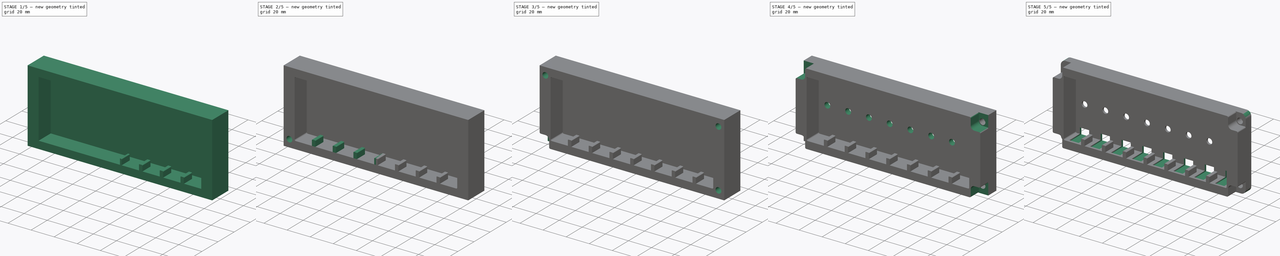
[diagram: build sequence overview — one tinted view per stage of 5, left to right]
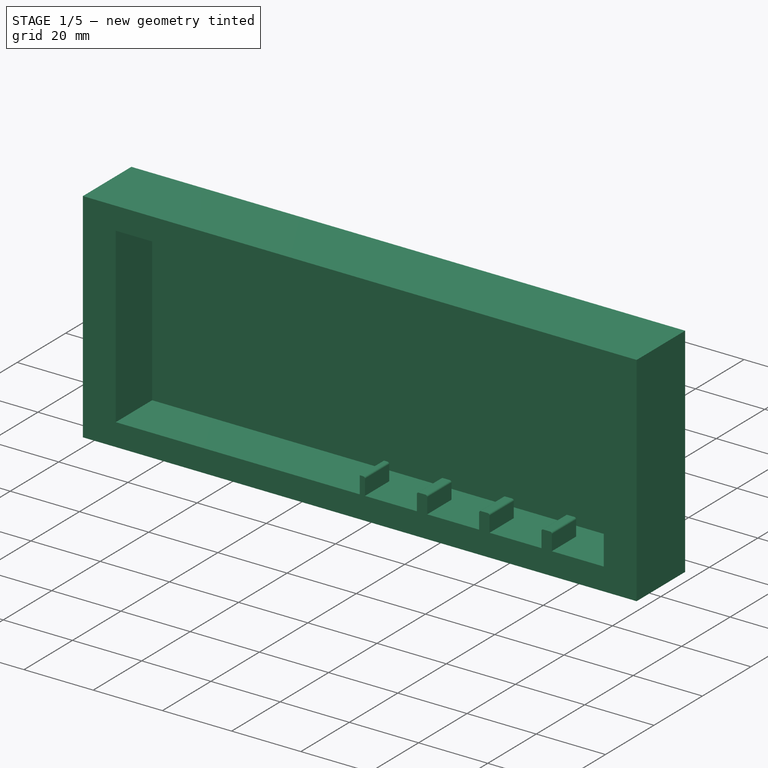
[diagram: stage 1 of 5 — iso view after this stage's code; geometry added in this stage tinted green]
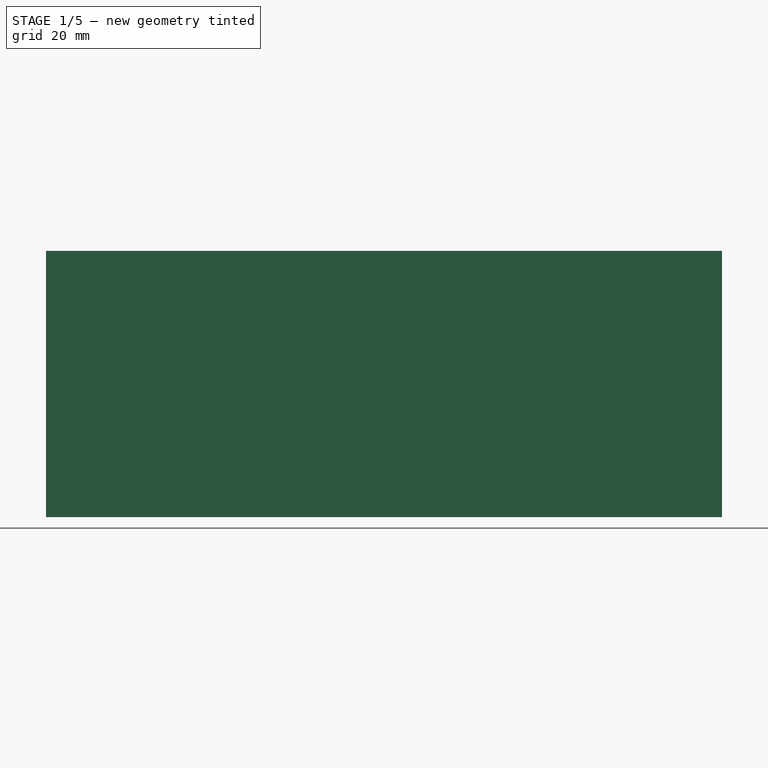
[diagram: stage 1 of 5 — front view after this stage's code; geometry added in this stage tinted green]
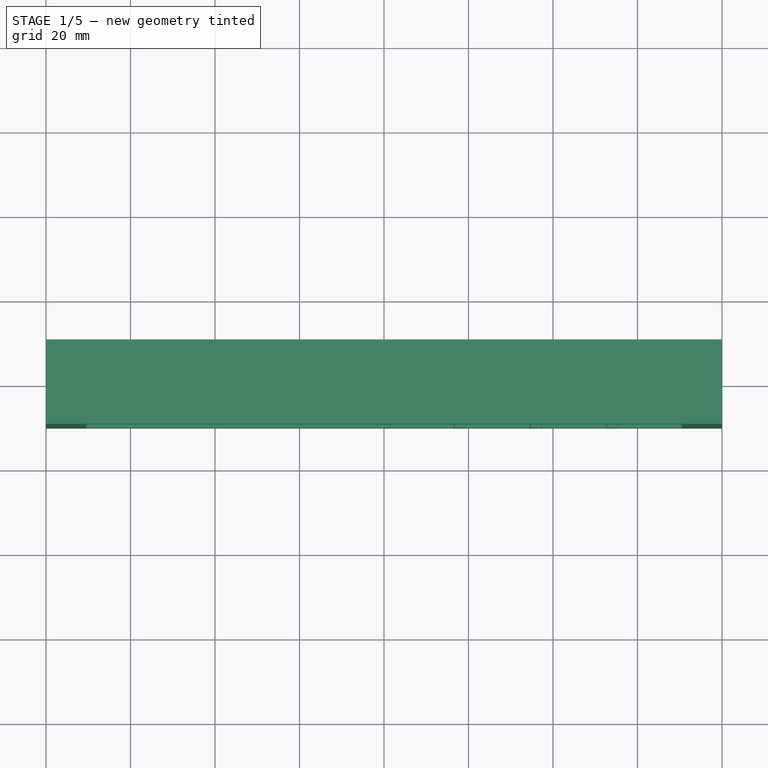
[diagram: stage 1 of 5 — top view after this stage's code; geometry added in this stage tinted green]
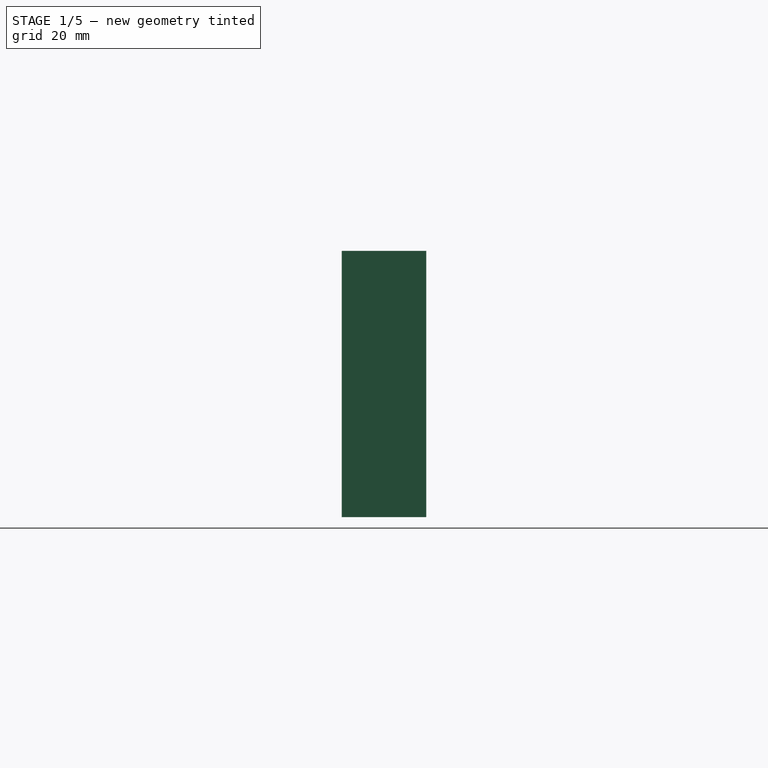
[diagram: stage 1 of 5 — right view after this stage's code; geometry added in this stage tinted green]
FCSTD DOCUMENT  (FreeCAD 0.20R29410 (Git))
Label: Battery_holder
License: All rights reserved
LicenseURL: http://en.wikipedia.org/wiki/All_rights_reserved
objects: Sketcher::SketchObject×9, PartDesign::Pocket×7, PartDesign::Mirrored×7, PartDesign::Fillet×4, PartDesign::MultiTransform×3, PartDesign::Pad×2, PartDesign::Plane×2, PartDesign::LinearPattern×1, PartDesign::Body×1
note: 49 computed .brp shape members not serialized (recipe doc carries the construction recipe); baked Part::Feature solids carry a one-line shape summary decoded from their .brp

FEATURE [Sketcher::SketchObject] Sketch
  FullyConstrained = true
  MapMode = 5
  Support = -> [XY_Plane]
  sketch-geometry (4):
    g0: LineSegment StartX=-80 StartY=10 StartZ=0 EndX=80 EndY=10 EndZ=0
    g1: LineSegment StartX=80 StartY=10 StartZ=0 EndX=80 EndY=-10 EndZ=0
    g2: LineSegment StartX=80 StartY=-10 StartZ=0 EndX=-80 EndY=-10 EndZ=0
    g3: LineSegment StartX=-80 StartY=-10 StartZ=0 EndX=-80 EndY=10 EndZ=0
  constraints (11):
    c: Coincident(g0,g1)
    c: Coincident(g1,g2)
    c: Coincident(g2,g3)
    c: Coincident(g3,g0)
    c: Horizontal(g0)
    c: Horizontal(g2)
    c: Vertical(g1)
    c: Vertical(g3)
    c: Symmetric(g0,g1,g-1)
    c: DistanceY(g1,g1) = 20
    c: DistanceX(g0,g0) = 160
FEATURE [PartDesign::Pad] Pad
  Direction = (0,0,1)
  Length = 63
  Length2 = 10
  Midplane = true
  Profile = -> Sketch
  ReferenceAxis = -> Sketch [N_Axis]
  Type = 0
FEATURE [Sketcher::SketchObject] Sketch001
  ExternalGeometry = -> [Pad]
  FullyConstrained = true
  MapMode = 5
  Support = -> [XY_Plane]
  sketch-geometry (4):
    g0: LineSegment StartX=-70.5 StartY=-10 StartZ=0 EndX=70.5 EndY=-10 EndZ=0
    g1: LineSegment StartX=70.5 StartY=-10 StartZ=0 EndX=70.5 EndY=5 EndZ=0
    g2: LineSegment StartX=70.5 StartY=5 StartZ=0 EndX=-70.5 EndY=5 EndZ=0
    g3: LineSegment StartX=-70.5 StartY=5 StartZ=0 EndX=-70.5 EndY=-10 EndZ=0
  constraints (11):
    c: Coincident(g0,g1)
    c: Coincident(g1,g2)
    c: Coincident(g2,g3)
    c: Coincident(g3,g0)
    c: Horizontal(g0)
    c: Vertical(g1)
    c: Vertical(g3)
    c: PointOnObject(g0,g-3)
    c: DistanceY(g3,g3) = 15
    c: Symmetric(g1,g2,g-2)
    c: DistanceX(g2,g2) = 141
FEATURE [PartDesign::Pocket] Pocket
  BaseFeature = -> Pad
  Direction = (0,0,-1)
  Length = 50
  Length2 = 5
  Midplane = true
  Profile = -> Sketch001
  ReferenceAxis = -> Sketch001 [N_Axis]
  Type = 0
FEATURE [Sketcher::SketchObject] Sketch002
  ExternalGeometry = -> [Pocket]
  FullyConstrained = true
  MapMode = 5
  Placement = pos=(0,0,0) rot=(1,0,0;1.5708rad)
  Support = -> [XZ_Plane]
  sketch-geometry (16):
    g0: LineSegment StartX=0 StartY=-20 StartZ=0 EndX=1.5 EndY=-20 EndZ=0
    g1: LineSegment StartX=1.5 StartY=-20 StartZ=0 EndX=1.5 EndY=-25 EndZ=0
    g2: LineSegment StartX=1.5 StartY=-25 StartZ=0 EndX=0 EndY=-25 EndZ=0
    g3: LineSegment StartX=0 StartY=-20 StartZ=0 EndX=0 EndY=-25 EndZ=0
    g4: LineSegment StartX=16.5 StartY=-20 StartZ=0 EndX=19.5 EndY=-20 EndZ=0
    g5: LineSegment StartX=19.5 StartY=-20 StartZ=0 EndX=19.5 EndY=-25 EndZ=0
    g6: LineSegment StartX=19.5 StartY=-25 StartZ=0 EndX=16.5 EndY=-25 EndZ=0
    g7: LineSegment StartX=16.5 StartY=-25 StartZ=0 EndX=16.5 EndY=-20 EndZ=0
    g8: LineSegment StartX=34.5 StartY=-20 StartZ=0 EndX=37.5 EndY=-20 EndZ=0
    g9: LineSegment StartX=37.5 StartY=-20 StartZ=0 EndX=37.5 EndY=-25 EndZ=0
    g10: LineSegment StartX=37.5 StartY=-25 StartZ=0 EndX=34.5 EndY=-25 EndZ=0
    g11: LineSegment StartX=34.5 StartY=-25 StartZ=0 EndX=34.5 EndY=-20 EndZ=0
    g12: LineSegment StartX=55.5 StartY=-20 StartZ=0 EndX=55.5 EndY=-25 EndZ=0
    g13: LineSegment StartX=52.5 StartY=-20 StartZ=0 EndX=55.5 EndY=-20 EndZ=0
    g14: LineSegment StartX=52.5 StartY=-25 StartZ=0 EndX=52.5 EndY=-20 EndZ=0
    g15: LineSegment StartX=55.5 StartY=-25 StartZ=0 EndX=52.5 EndY=-25 EndZ=0
  constraints (48):
    c: Coincident(g0,g1)
    c: Coincident(g1,g2)
    c: Horizontal(g0)
    c: Vertical(g1)
    c: PointOnObject(g0,g-2)
    c: PointOnObject(g2,g-2)
    c: DistanceY(g1,g1) = 5
    c: DistanceX(g0,g0) = 1.5
    c: Horizontal(g2)
    c: PointOnObject(g2,g-3)
    c: Coincident(g3,g0)
    c: Coincident(g3,g2)
    c: Coincident(g4,g5)
    c: Coincident(g5,g6)
    c: Coincident(g6,g7)
    c: Coincident(g7,g4)
    c: Horizontal(g4)
    c: Horizontal(g6)
    c: Vertical(g5)
    c: Vertical(g7)
    c: PointOnObject(g5,g-3)
    c: Equal(g5,g1)
    c: DistanceX(g4,g4) = 3
    c: DistanceX(g0,g4) = 15
    c: Coincident(g8,g9)
    c: Coincident(g9,g10)
    c: Coincident(g10,g11)
    c: Coincident(g11,g8)
    c: Horizontal(g8)
    c: Horizontal(g10)
    c: Vertical(g9)
    c: Vertical(g11)
    c: Equal(g4,g8) = 3
    c: PointOnObject(g11,g-3)
    c: DistanceX(g4,g8) = 15
    c: Equal(g11,g5)
    c: Coincident(g13,g12)
    c: Coincident(g12,g15)
    c: Coincident(g15,g14)
    c: Coincident(g14,g13)
    c: Horizontal(g13)
    c: Horizontal(g15)
    c: Vertical(g12)
    c: Vertical(g14)
    c: PointOnObject(g15,g-3)
    c: DistanceX(g8,g13) = 15
    c: Equal(g13,g8)
    c: Horizontal(g13,g8)
FEATURE [PartDesign::Pad] Pad001
  BaseFeature = -> Pocket
  Direction = (0,-1,-2e-16)
  Length = 10
  Length2 = 10
  Profile = -> Sketch002
  ReferenceAxis = -> Sketch002 [N_Axis]
  Type = 0
FEATURE [PartDesign::Fillet] Fillet
  Base = -> Pad001 [Edge72,Edge71,Edge67,Edge66,Edge62,Edge61,Edge57]
  BaseFeature = -> Pad001
  Radius = 0.5
  SupportTransform = false
  UseAllEdges = false
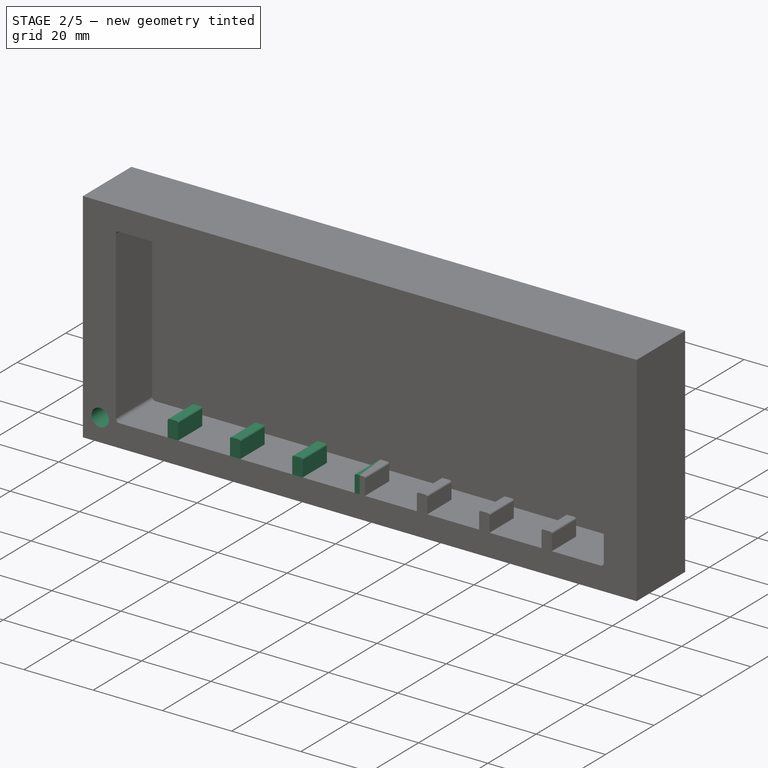
[diagram: stage 2 of 5 — iso view after this stage's code; geometry added in this stage tinted green]
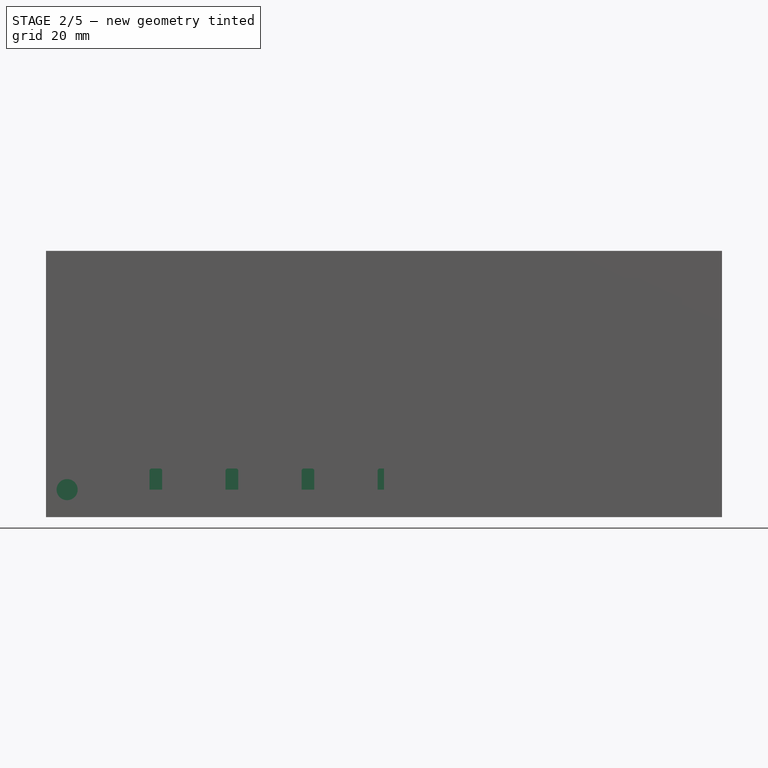
[diagram: stage 2 of 5 — front view after this stage's code; geometry added in this stage tinted green]
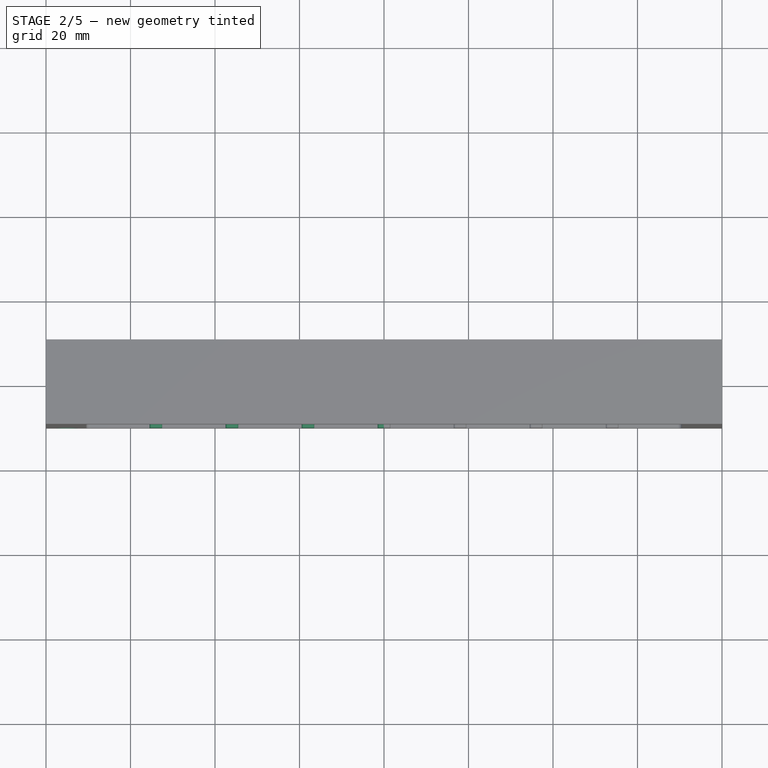
[diagram: stage 2 of 5 — top view after this stage's code; geometry added in this stage tinted green]
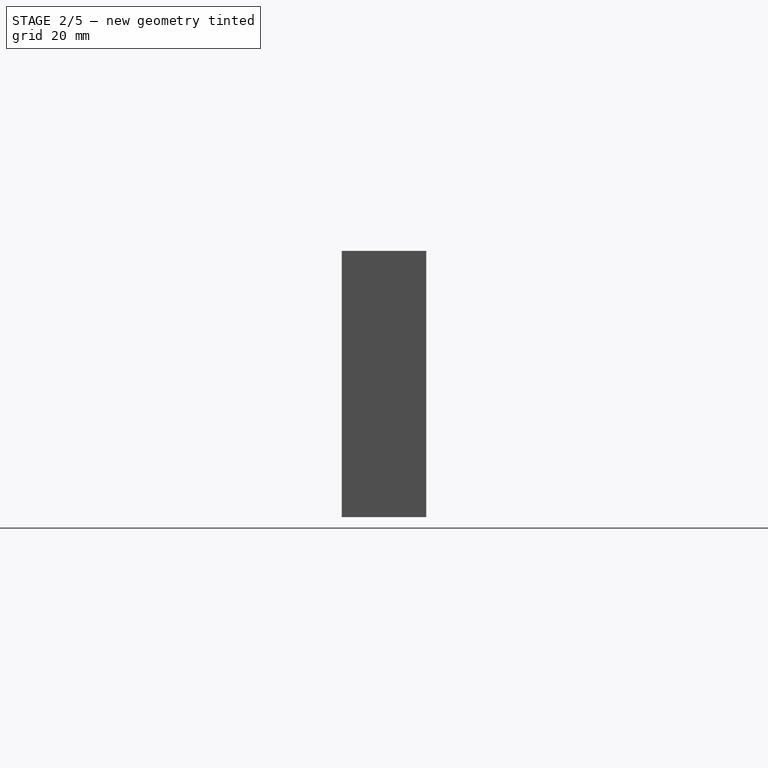
[diagram: stage 2 of 5 — right view after this stage's code; geometry added in this stage tinted green]
FEATURE [PartDesign::Mirrored] Mirrored
  BaseFeature = -> Fillet
  MirrorPlane = -> Sketch002 [V_Axis]
  Originals = -> [Pad001,Fillet]
FEATURE [PartDesign::Fillet] Fillet001
  Base = -> Mirrored [Edge77,Edge109,Edge47,Edge67]
  BaseFeature = -> Mirrored
  Radius = 1
  SupportTransform = false
  UseAllEdges = false
FEATURE [PartDesign::Plane] DatumPlane
  AttachmentOffset = pos=(0,0,-5) rot=(0,0,1;0rad)
  Length = 180.08
  MapMode = 2
  Placement = pos=(0,5,1.1e-15) rot=(1,0,0;1.5708rad)
  ResizeMode = 0
  Support = -> [XZ_Plane]
  Width = 83.0798
FEATURE [Sketcher::SketchObject] Sketch003
  FullyConstrained = true
  MapMode = 5
  Placement = pos=(0,5,1.1e-15) rot=(1,0,0;1.5708rad)
  Support = -> [DatumPlane]
  sketch-geometry (1):
    g0: Circle CenterX=-75 CenterY=-25 CenterZ=0 NormalX=0 NormalY=0 NormalZ=1 AngleXU=0 Radius=2.5
  constraints (3):
    c: Radius(g0) = 2.5
    c: DistanceY(g0) = -25
    c: DistanceX(g0) = -75
FEATURE [PartDesign::Pocket] Pocket001
  BaseFeature = -> Fillet001
  Direction = (0,1,2e-16)
  Length = 22
  Length2 = 5
  Profile = -> Sketch003
  ReferenceAxis = -> Sketch003 [N_Axis]
  Reversed = true
  Type = 0
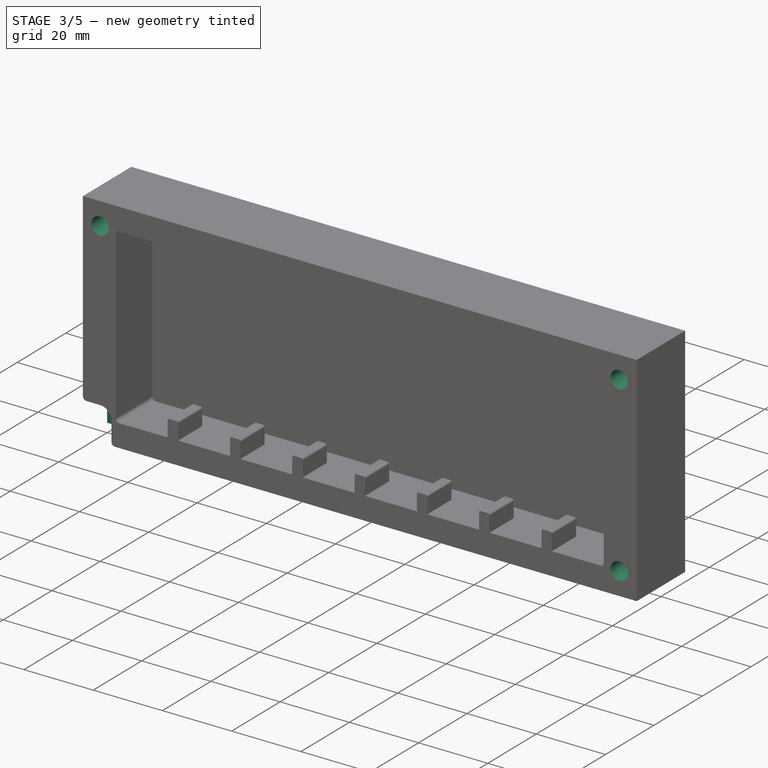
[diagram: stage 3 of 5 — iso view after this stage's code; geometry added in this stage tinted green]
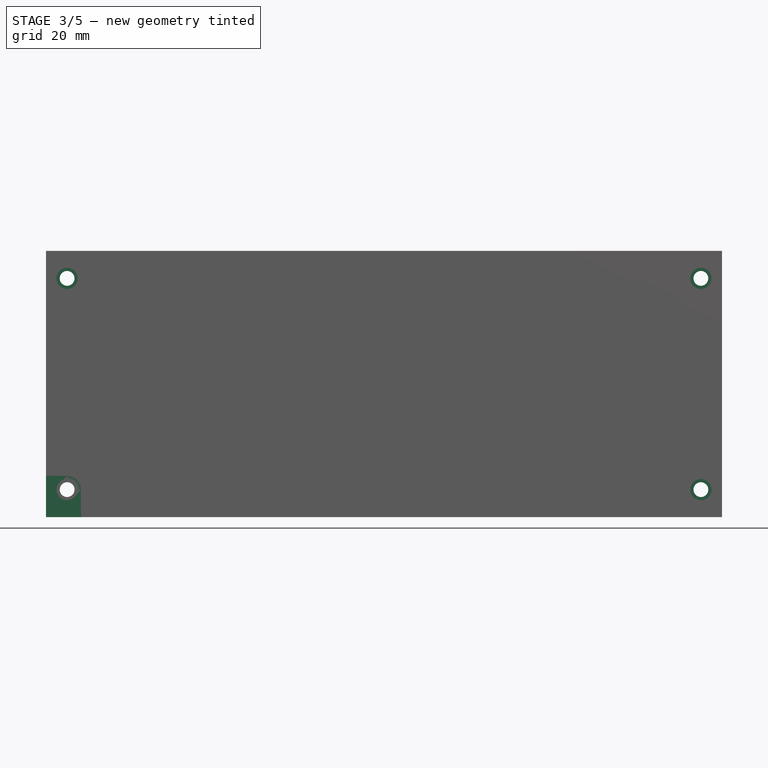
[diagram: stage 3 of 5 — front view after this stage's code; geometry added in this stage tinted green]
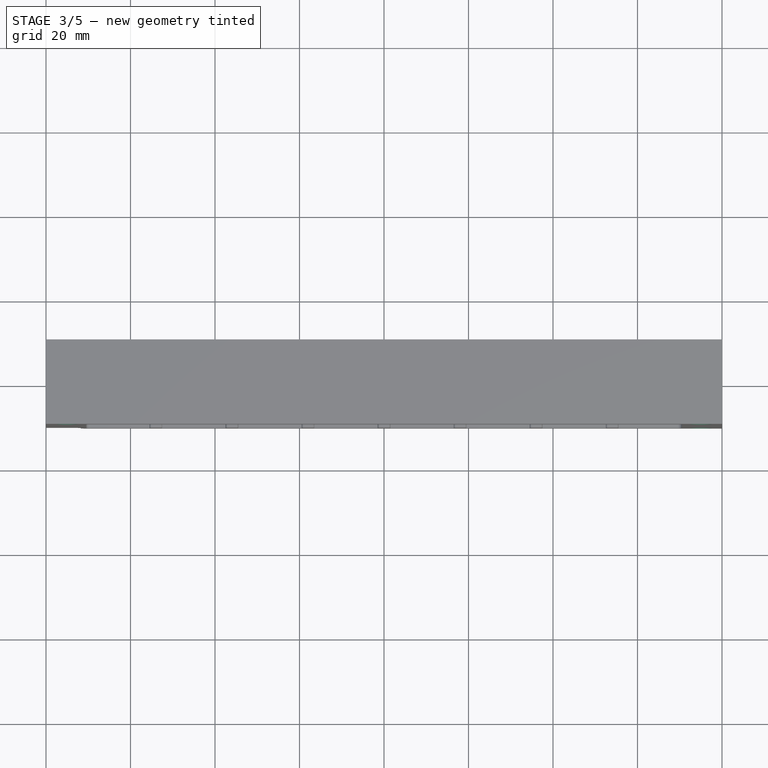
[diagram: stage 3 of 5 — top view after this stage's code; geometry added in this stage tinted green]
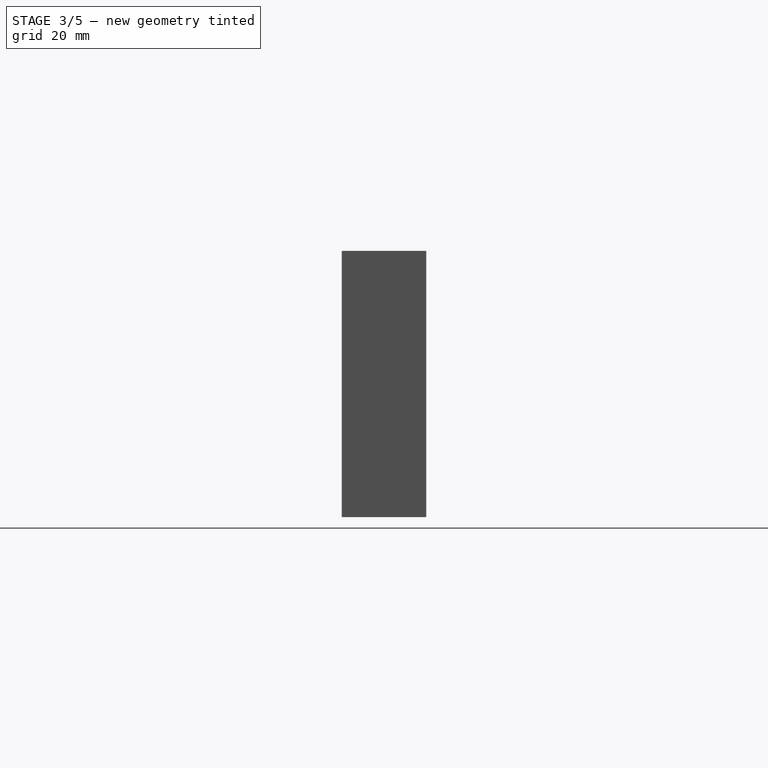
[diagram: stage 3 of 5 — right view after this stage's code; geometry added in this stage tinted green]
FEATURE [Sketcher::SketchObject] Sketch004
  ExternalGeometry = -> [Pocket001]
  FullyConstrained = true
  MapMode = 5
  Placement = pos=(0,5,1.1e-15) rot=(1,0,0;1.5708rad)
  Support = -> [DatumPlane]
  sketch-geometry (1):
    g0: Circle CenterX=-75 CenterY=-25 CenterZ=0 NormalX=0 NormalY=0 NormalZ=1 AngleXU=0 Radius=1.75
  constraints (3):
    c: Coincident(g0,g-3)
    c: Diameter(g0) = 3.5
    c: Diameter(g-3) = 5
FEATURE [PartDesign::Pocket] Pocket002
  BaseFeature = -> Pocket001
  Direction = (0,1,2e-16)
  Length = 5
  Length2 = 5
  Profile = -> Sketch004
  ReferenceAxis = -> Sketch004 [N_Axis]
  Type = 0
FEATURE [PartDesign::Mirrored] Mirrored001
  MirrorPlane = -> Sketch004 [V_Axis]
FEATURE [PartDesign::Mirrored] Mirrored002
  MirrorPlane = -> XY_Plane
FEATURE [PartDesign::MultiTransform] MultiTransform
  BaseFeature = -> Pocket002
  Originals = -> [Pocket002,Pocket001]
  Transformations = -> [Mirrored001,Mirrored002]
FEATURE [Sketcher::SketchObject] Sketch005
  ExternalGeometry = -> [MultiTransform]
  FullyConstrained = true
  MapMode = 5
  Placement = pos=(0,0,0) rot=(1,0,0;1.5708rad)
  Support = -> [XZ_Plane]
  sketch-geometry (5):
    g0: ArcOfCircle CenterX=-75 CenterY=-25 CenterZ=0 NormalX=0 NormalY=0 NormalZ=1 AngleXU=0 Radius=3.25 StartAngle=0 EndAngle=1.5708
    g1: LineSegment StartX=-75 StartY=-21.75 StartZ=0 EndX=-81 EndY=-21.75 EndZ=0
    g2: LineSegment StartX=-81 StartY=-21.75 StartZ=0 EndX=-81 EndY=-32.84 EndZ=0
    g3: LineSegment StartX=-81 StartY=-32.84 StartZ=0 EndX=-71.75 EndY=-32.84 EndZ=0
    g4: LineSegment StartX=-71.75 StartY=-32.84 StartZ=0 EndX=-71.75 EndY=-25 EndZ=0
  constraints (13):
    c: Coincident(g0,g-3)
    c: Horizontal(g0,g0)
    c: Vertical(g0,g0)
    c: Diameter(g0) = 6.5
    c: Tangent(g0,g1) = -1.5708
    c: Coincident(g1,g2)
    c: Vertical(g2)
    c: Coincident(g2,g3)
    c: Horizontal(g3)
    c: Coincident(g3,g4)
    c: DistanceX(g1,g1) = 6
    c: DistanceY(g2,g2) = 11.09
    c: Tangent(g4,g0) = -1.5708
FEATURE [PartDesign::Pocket] Pocket003
  BaseFeature = -> MultiTransform
  Direction = (0,1,2e-16)
  Length = 10
  Length2 = 5
  Profile = -> Sketch005
  ReferenceAxis = -> Sketch005 [N_Axis]
  Reversed = true
  Type = 0
FEATURE [PartDesign::Fillet] Fillet002
  Base = -> Pocket003 [Edge44,Edge36]
  BaseFeature = -> Pocket003
  Radius = 1
  SupportTransform = false
  UseAllEdges = false
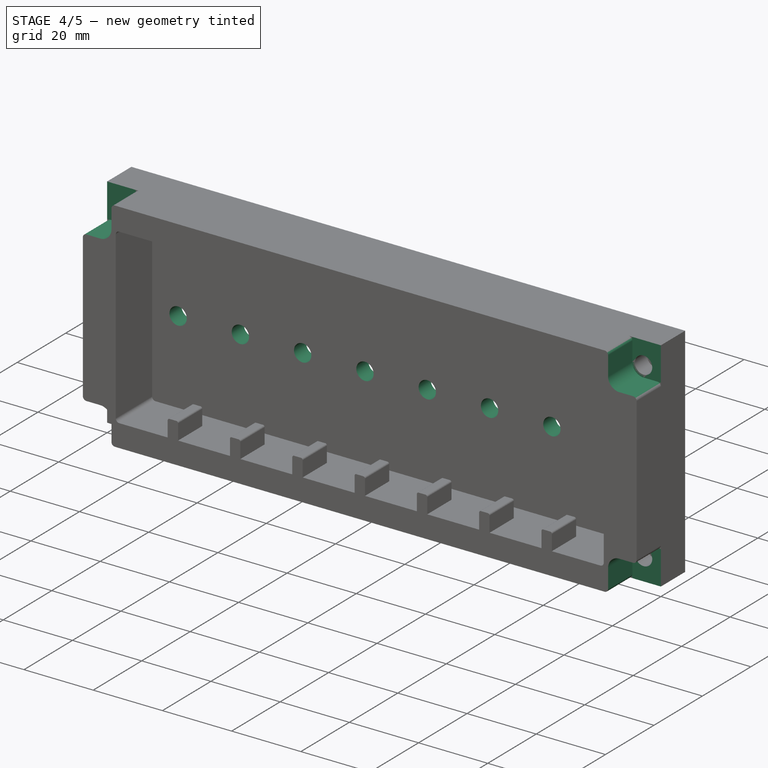
[diagram: stage 4 of 5 — iso view after this stage's code; geometry added in this stage tinted green]
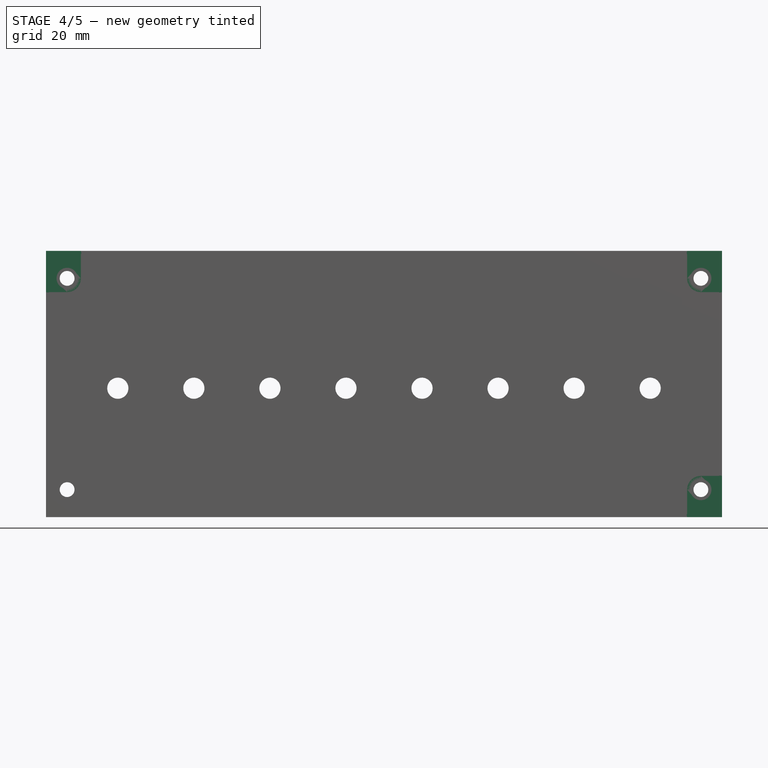
[diagram: stage 4 of 5 — front view after this stage's code; geometry added in this stage tinted green]
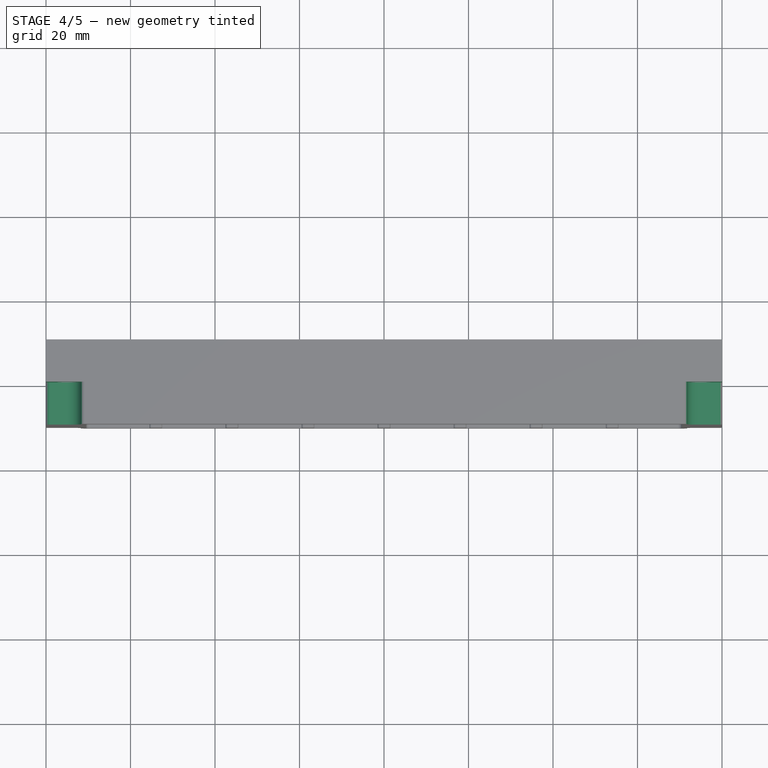
[diagram: stage 4 of 5 — top view after this stage's code; geometry added in this stage tinted green]
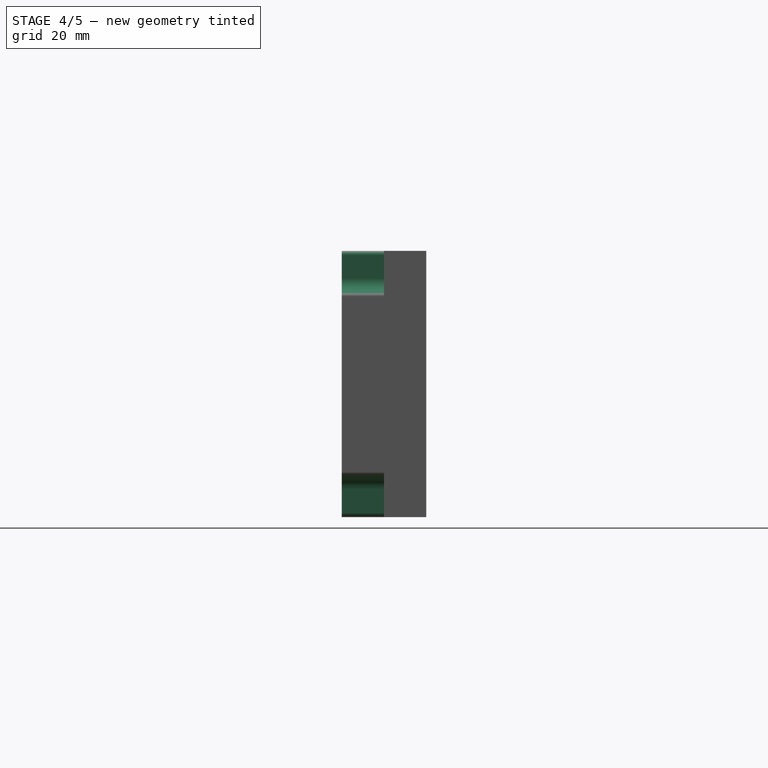
[diagram: stage 4 of 5 — right view after this stage's code; geometry added in this stage tinted green]
FEATURE [PartDesign::Mirrored] Mirrored003
  MirrorPlane = -> Sketch005 [V_Axis]
FEATURE [PartDesign::Mirrored] Mirrored004
  MirrorPlane = -> XY_Plane
FEATURE [PartDesign::MultiTransform] MultiTransform001
  BaseFeature = -> Fillet002
  Originals = -> [Pocket003,Fillet002]
  Transformations = -> [Mirrored003,Mirrored004]
FEATURE [PartDesign::Plane] DatumPlane001
  AttachmentOffset = pos=(0,-1,-5) rot=(0,0,1;0rad)
  Length = 180.08
  MapMode = 5
  Placement = pos=(0,5,-1) rot=(1,0,0;1.5708rad)
  ResizeMode = 0
  Support = -> [XZ_Plane]
  Width = 83.0798
FEATURE [Sketcher::SketchObject] Sketch006
  ExternalGeometry = -> [Fillet002]
  FullyConstrained = true
  MapMode = 5
  Placement = pos=(0,5,-1) rot=(1,0,0;1.5708rad)
  Support = -> [DatumPlane001]
  sketch-geometry (4):
    g0: Circle CenterX=-63 CenterY=0 CenterZ=0 NormalX=0 NormalY=0 NormalZ=1 AngleXU=0 Radius=2.5
    g1: Circle CenterX=-45 CenterY=0 CenterZ=0 NormalX=0 NormalY=0 NormalZ=1 AngleXU=0 Radius=2.5
    g2: Circle CenterX=-27 CenterY=0 CenterZ=0 NormalX=0 NormalY=0 NormalZ=1 AngleXU=0 Radius=2.5
    g3: Circle CenterX=-9 CenterY=0 CenterZ=0 NormalX=0 NormalY=0 NormalZ=1 AngleXU=0 Radius=2.5
  constraints (14):
    c: PointOnObject(g0,g-1)
    c: PointOnObject(g1,g-1)
    c: PointOnObject(g2,g-1)
    c: Equal(g2,g1)
    c: Equal(g1,g0)
    c: PointOnObject(g3,g-1)
    c: Equal(g3,g2)
    c: Diameter(g3) = 5
    c: DistanceX(g3,g-1) = 9
    c: DistanceX(g-3,g-4) = 15
    c: DistanceX(g-4,g-1) = 19.5
    c: DistanceX(g2) = -27
    c: DistanceX(g1) = -45
    c: DistanceX(g0,g-1) = 63
FEATURE [PartDesign::Pocket] Pocket004
  BaseFeature = -> MultiTransform001
  Direction = (0,1,2e-16)
  Length = 5
  Length2 = 5
  Profile = -> Sketch006
  ReferenceAxis = -> Sketch006 [N_Axis]
  Type = 0
FEATURE [PartDesign::Mirrored] Mirrored005
  BaseFeature = -> Pocket004
  MirrorPlane = -> Sketch006 [V_Axis]
  Originals = -> [Pocket004]
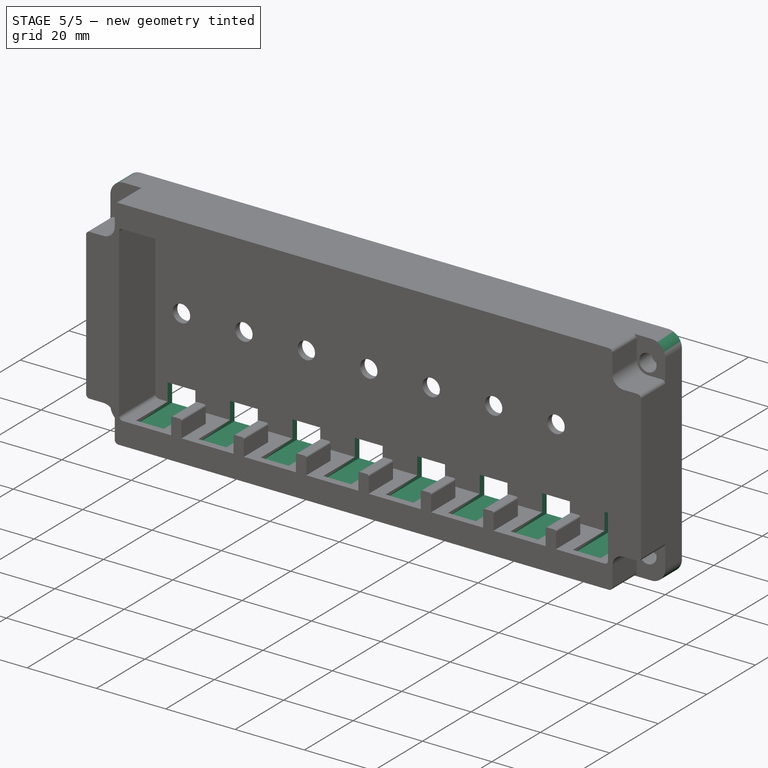
[diagram: stage 5 of 5 — iso view after this stage's code; geometry added in this stage tinted green]
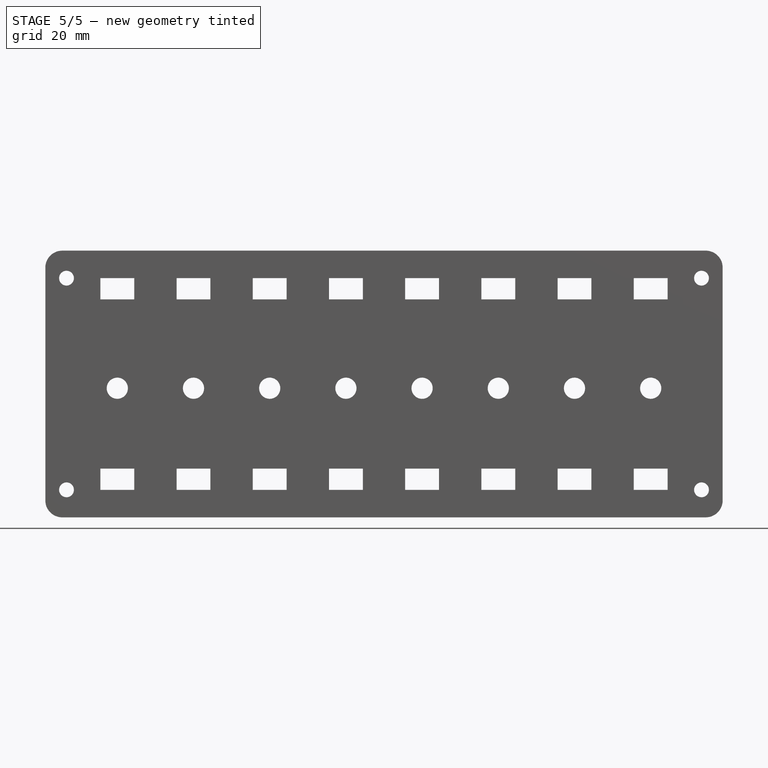
[diagram: stage 5 of 5 — front view after this stage's code; geometry added in this stage tinted green]
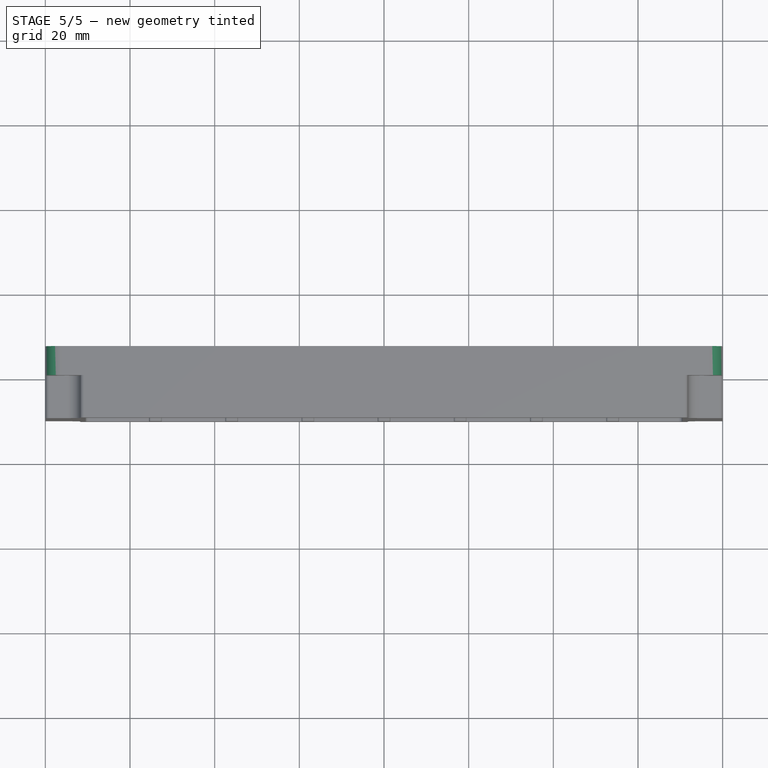
[diagram: stage 5 of 5 — top view after this stage's code; geometry added in this stage tinted green]
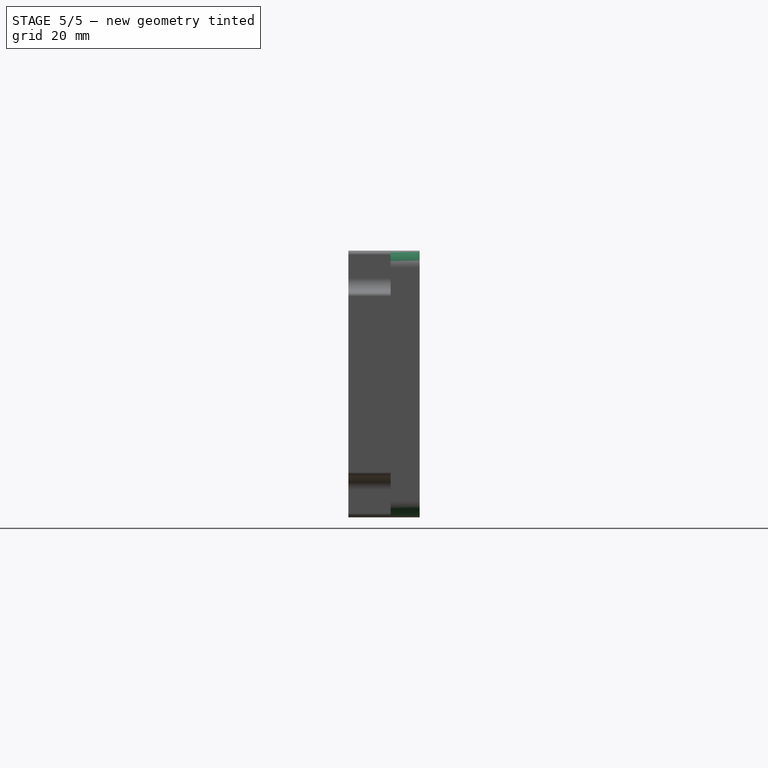
[diagram: stage 5 of 5 — right view after this stage's code; geometry added in this stage tinted green]
FEATURE [Sketcher::SketchObject] Sketch007
  ExternalGeometry = -> [Mirrored005]
  FullyConstrained = true
  MapMode = 5
  Placement = pos=(0,5,-1) rot=(1,0,0;1.5708rad)
  Support = -> [DatumPlane001]
  sketch-geometry (5):
    g0: LineSegment StartX=-67 StartY=-19 StartZ=0 EndX=-59 EndY=-19 EndZ=0
    g1: LineSegment StartX=-59 StartY=-19 StartZ=0 EndX=-59 EndY=-25 EndZ=0
    g2: LineSegment StartX=-59 StartY=-25 StartZ=0 EndX=-67 EndY=-25 EndZ=0
    g3: LineSegment StartX=-67 StartY=-25 StartZ=0 EndX=-67 EndY=-19 EndZ=0
    g4: LineSegment StartX=-63 StartY=0 StartZ=0 EndX=-63 EndY=-25 EndZ=0
  constraints (14):
    c: Coincident(g0,g1)
    c: Coincident(g1,g2)
    c: Coincident(g2,g3)
    c: Coincident(g3,g0)
    c: Horizontal(g0)
    c: Horizontal(g2)
    c: Vertical(g1)
    c: Vertical(g3)
    c: Coincident(g4,g-4)
    c: Vertical(g4)
    c: Symmetric(g2,g1,g4)
    c: DistanceX(g0,g0) = 8
    c: DistanceY(g1,g1) = 6
    c: DistanceY(g2,g-3) = 1
FEATURE [PartDesign::Pocket] Pocket005
  BaseFeature = -> Mirrored005
  Direction = (0,1,2e-16)
  Length = 5
  Length2 = 13
  Profile = -> Sketch007
  ReferenceAxis = -> Sketch007 [N_Axis]
  Type = 4
FEATURE [PartDesign::LinearPattern] LinearPattern
  Direction = -> Sketch007 [H_Axis]
  Length = 126
  Occurrences = 8
FEATURE [PartDesign::Mirrored] Mirrored006
  MirrorPlane = -> XY_Plane
FEATURE [PartDesign::MultiTransform] MultiTransform002
  BaseFeature = -> Pocket005
  Originals = -> [Pocket005]
  Transformations = -> [LinearPattern,Mirrored006]
FEATURE [PartDesign::Fillet] Fillet003
  Base = -> MultiTransform002 [Edge85,Edge53,Edge51,Edge70]
  BaseFeature = -> MultiTransform002
  Radius = 4
  SupportTransform = false
  UseAllEdges = false
FEATURE [Sketcher::SketchObject] Sketch008
  FullyConstrained = false
  MapMode = 5
  Support = -> [XY_Plane]
  sketch-geometry (4):
    g0: LineSegment StartX=-87.8411 StartY=32.8337 StartZ=0 EndX=87.5192 EndY=32.8337 EndZ=0
    g1: LineSegment StartX=87.5192 StartY=32.8337 StartZ=0 EndX=87.5192 EndY=6.86 EndZ=0
    g2: LineSegment StartX=87.5192 StartY=6.86 StartZ=0 EndX=-87.8411 EndY=6.86 EndZ=0
    g3: LineSegment StartX=-87.8411 StartY=6.86 StartZ=0 EndX=-87.8411 EndY=32.8337 EndZ=0
  constraints (9):
    c: Coincident(g0,g1)
    c: Coincident(g1,g2)
    c: Coincident(g2,g3)
    c: Coincident(g3,g0)
    c: Horizontal(g0)
    c: Horizontal(g2)
    c: Vertical(g1)
    c: Vertical(g3)
    c: DistanceY(g2) = 6.86
FEATURE [PartDesign::Pocket] Pocket006
  BaseFeature = -> Fillet003
  Direction = (0,0,-1)
  Length = 63
  Length2 = 5
  Midplane = true
  Profile = -> Sketch008
  ReferenceAxis = -> Sketch008 [N_Axis]
  Type = 0
FEATURE [PartDesign::Body] Body
  Group = -> [Sketch,Pad,Sketch001,Pocket,Sketch002,Pad001,Fillet,Mirrored,Fillet001,DatumPlane,Sketch003,Pocket001,Sketch004,Pocket002,MultiTransform,Mirrored001,Mirrored002,Sketch005,Pocket003,Fillet002,MultiTransform001,Mirrored003,Mirrored004,DatumPlane001,Sketch006,Pocket004,Mirrored005,Sketch007,Pocket005,MultiTransform002,LinearPattern,Mirrored006,Fillet003,Sketch008,Pocket006]
  Origin = -> Origin
  Tip = -> Pocket006
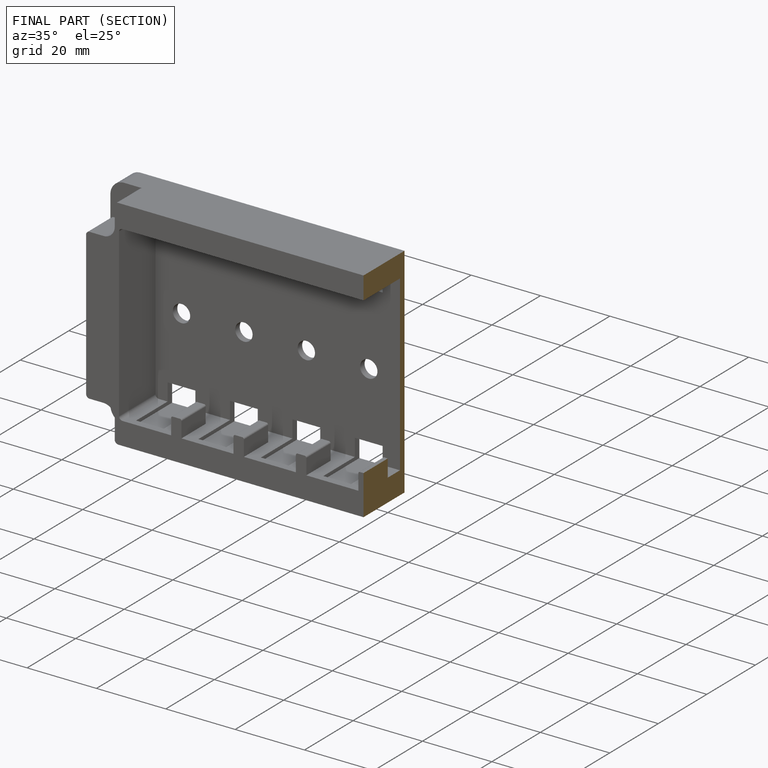
[diagram: finished part — half-section view (interior)]
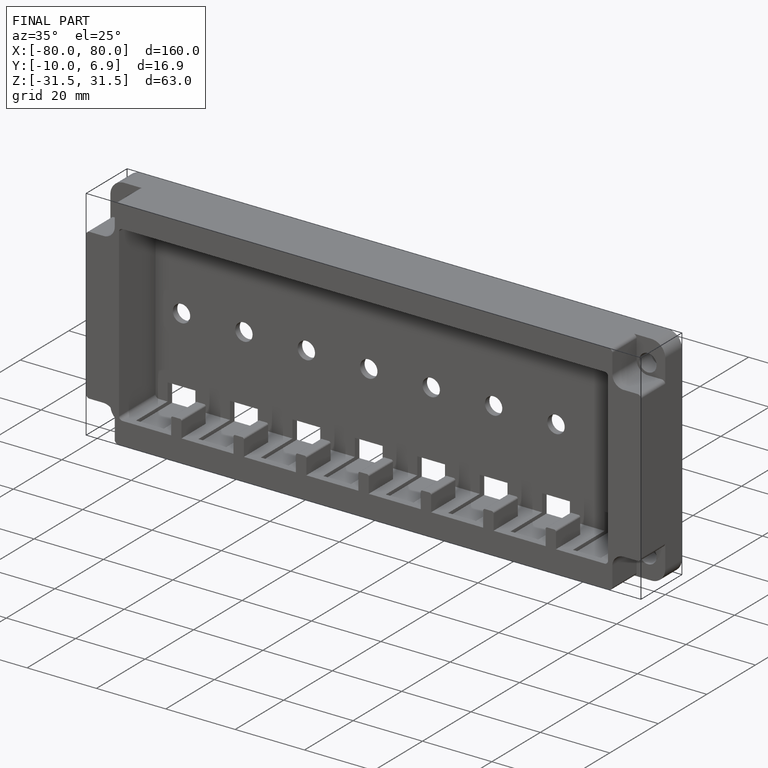
[diagram: finished part — iso view with bounding-box wireframe]
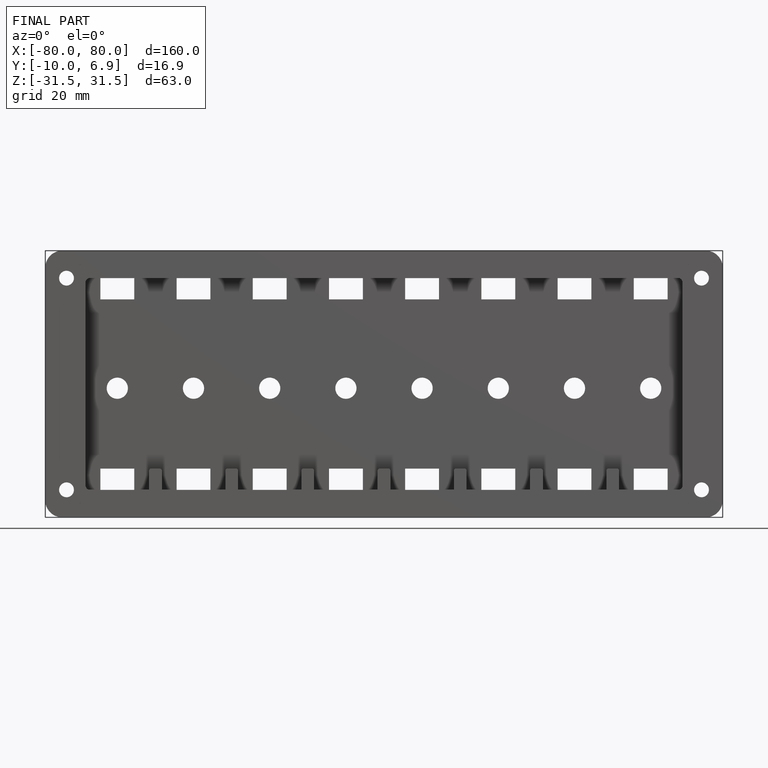
[diagram: finished part — front view with bounding-box wireframe]
